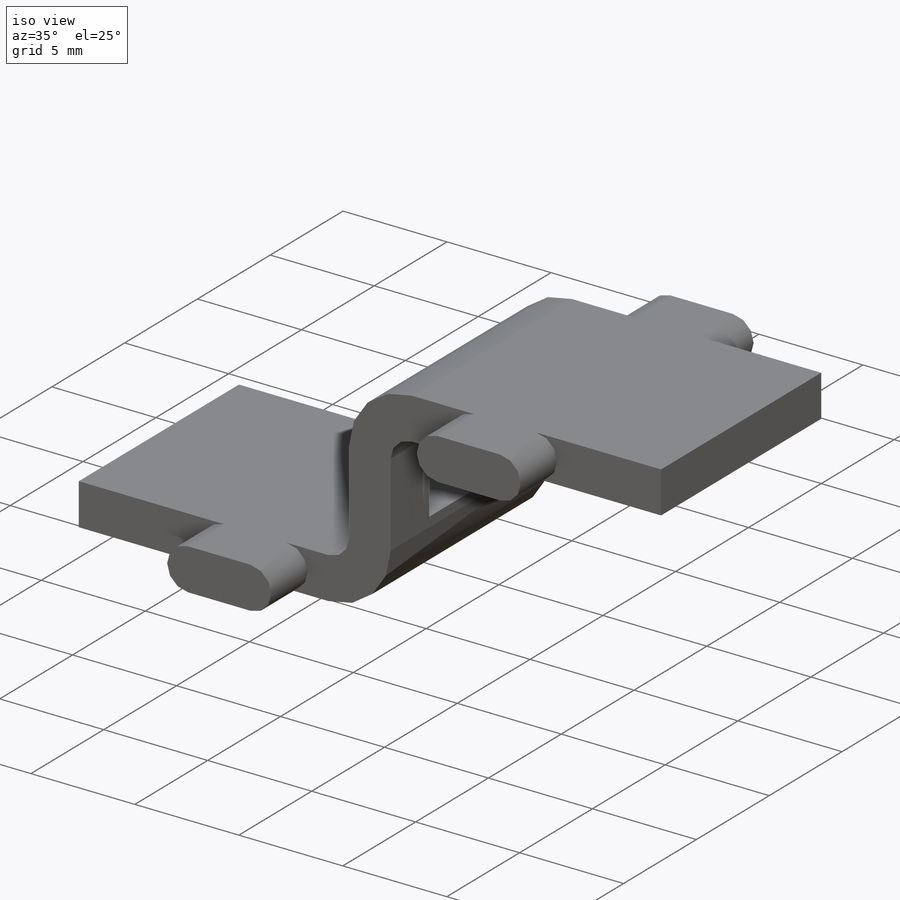
[diagram: iso view]
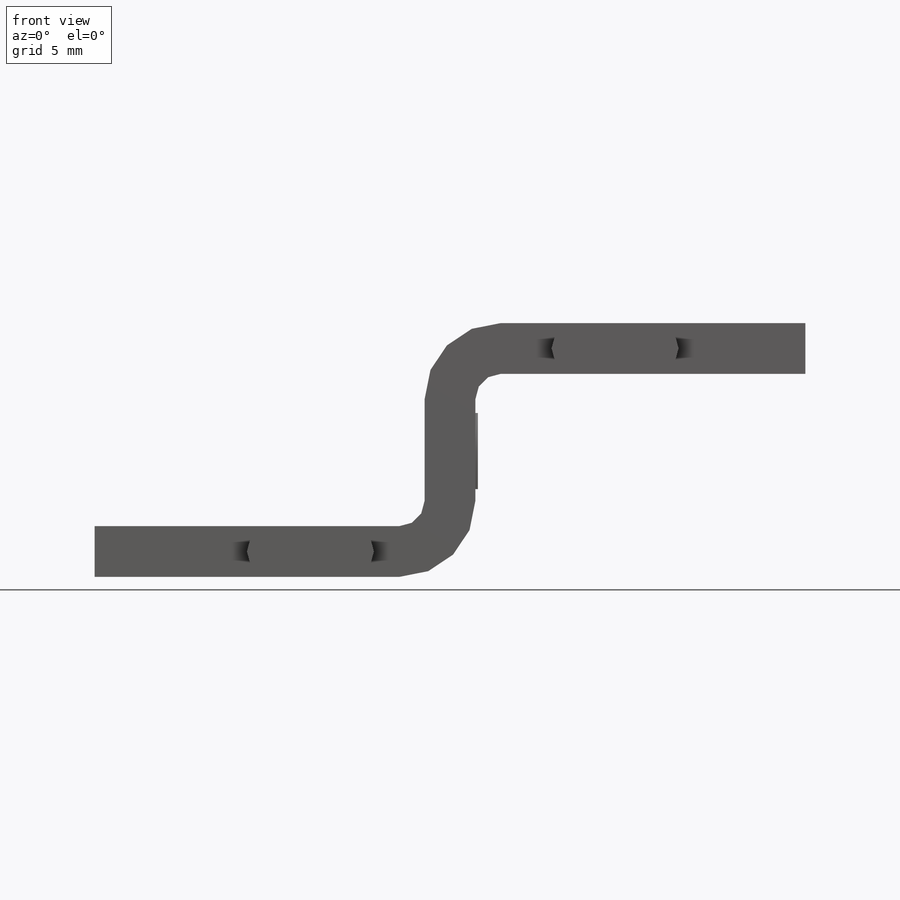
[diagram: front view]
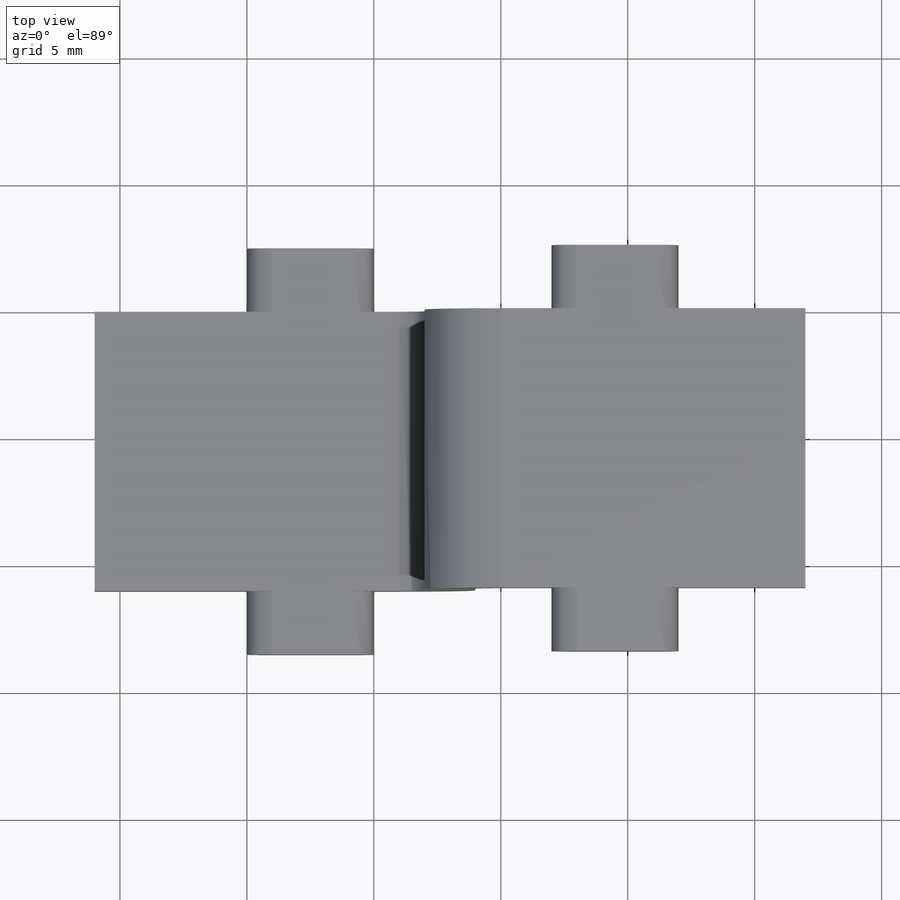
[diagram: top view]
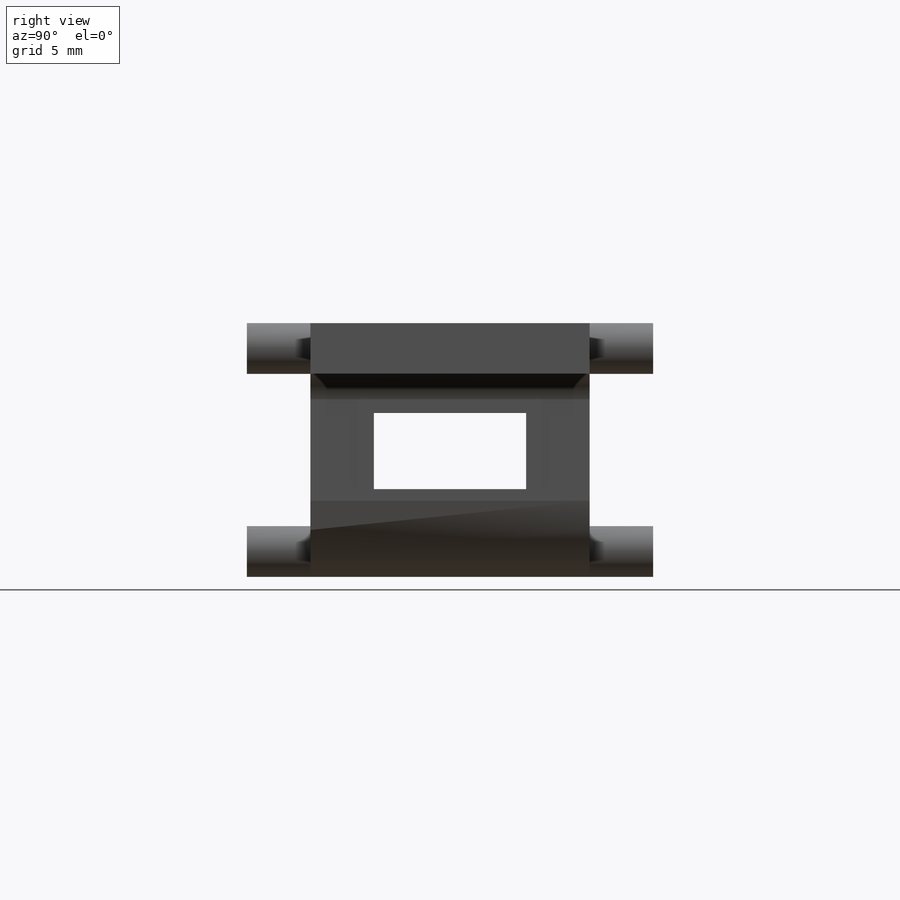
[diagram: right view]
SOLIDWORKS PART (.sldprt)
format: sldprt  version: not decoded by parser v0  size: 257,536 bytes
history: native  units: mm
features: sketch x7, plane x3, extrude x2, pattern_linear x2, material x1, sheet_metal_op x1, cut_extrude x1 + 1 further entry (+12 scaffold rows collapsed)
feature tree (30):
  scaffold x12  (default folders/planes/origin — collapsed)
  material  "Matériau <non spécifié>"
  plane  "Face"
  plane  "Dessus"
  plane  "Droite"
  sketch  "Esquisse2"  dims[c1.D1=~13.595016mm c2.D1=14.0mm c2.D2=14.0mm c2.D3=5.0mm c2.D4=5.0mm c2.D5=13.0mm c3.D1=11.0mm c3.Epaisseur=2.0mm c3.D6=10.0mm c3.D7=5.0mm]
  sheet_metal_op  "Tôlerie 2"
  sketch  "Esquisse-Angle2"  dims[c1.Pli dans angle3=0.0 c1.D1=0.0mm c1.D4=90.0deg c1.D5=2.0 c1.D8=0.0mm c1.D9=0.0mm c2.D1=0.0mm]
  sketch  "Esquisse-Plate2"  dims[D1=0.0mm]
  sketch  "Esquisse3"  dims[D1=3.0mm D2=2.0mm D3=3.0mm D4=2.0mm]
  extrude  "Extrusion2"  Depth=2.5mm
  sketch  "Esquisse4"  dims[D1=3.0mm D2=6.0mm D3=2.5mm]
  cut_extrude  "Enlèv. mat.-Extru.1"  [1 undecoded]
  pattern_linear  "Répétition linéaire1"  Count1=2 Count2=1 Spacing1=13.5mm Spacing2=50mm
  sketch  "Esquisse6"  dims[c1.D2=~1.554843mm c1.D1=1.5mm c2.D2=3.0mm]
  extrude  "Extrusion4"  Depth=0.1mm
  "Etat déplié2"
  sketch  "Lignes de pliage2"
  pattern_linear  "Dépliage-<Pli dans angle4>1"  [2 undecoded]
decode coverage: 9 of 13 modeling features carry decoded parameters; 1 rows unclassified (native names shown)
note: ~ marks probable driven/reference dimensions
note: 3 parameter values undecoded
note: suppression state not decoded; provenance and decode notes live in map.json
